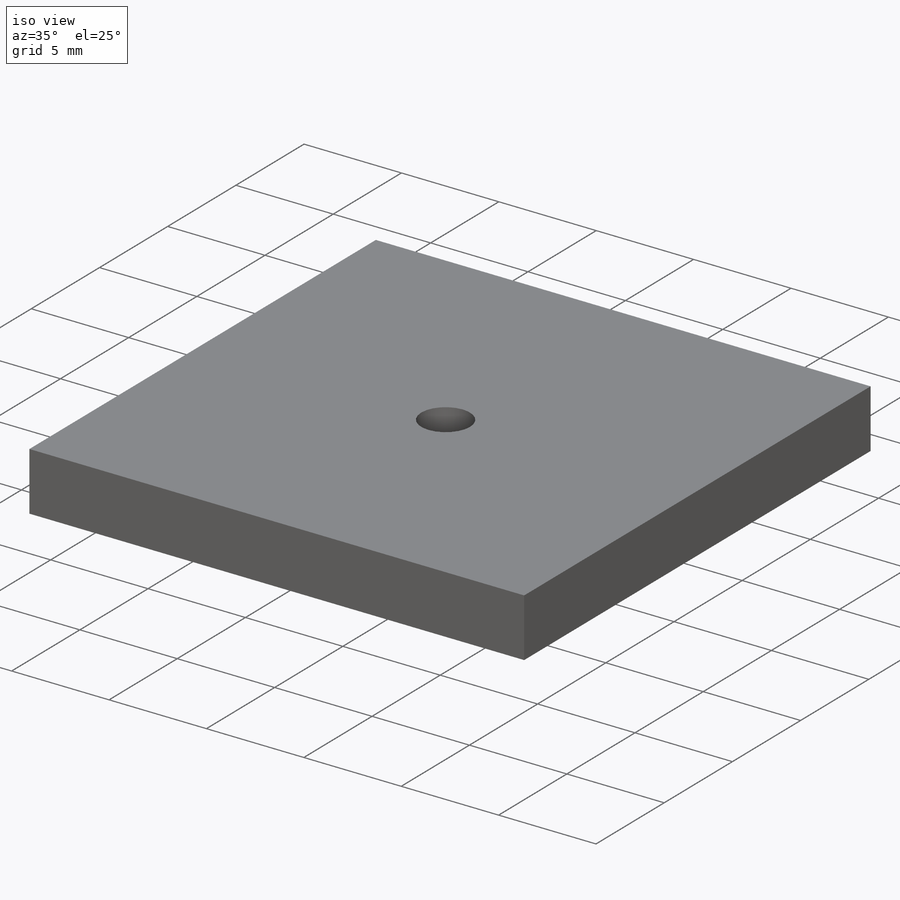
[diagram: iso view]
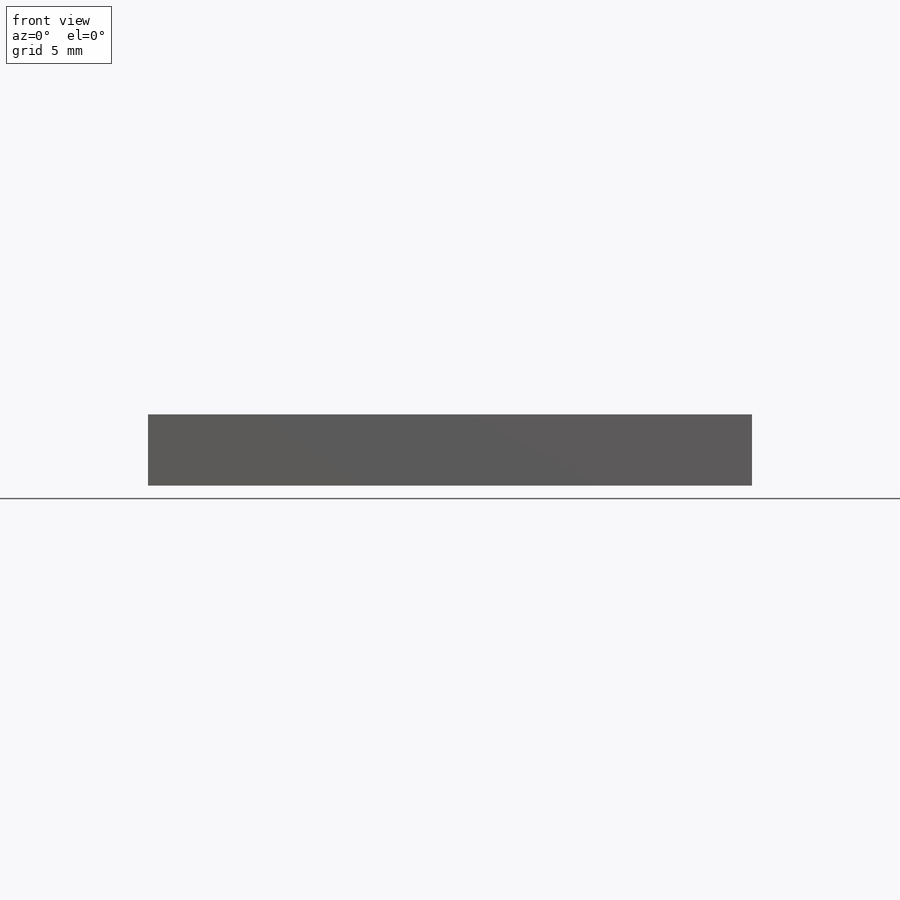
[diagram: front view]
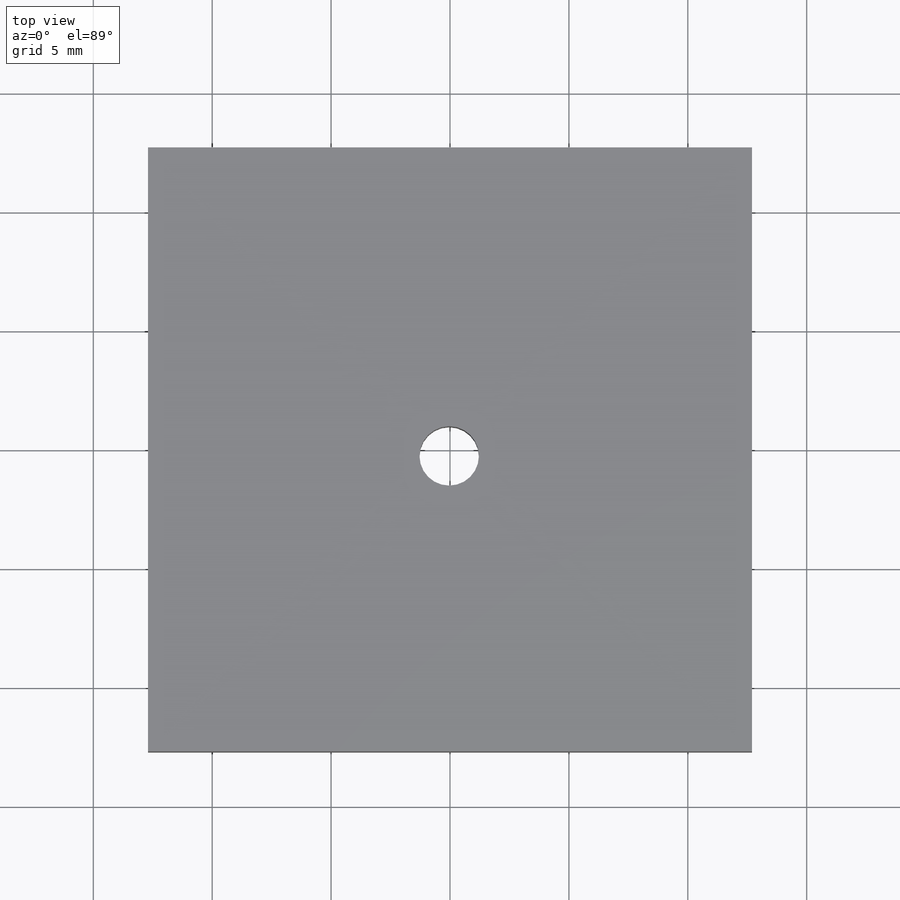
[diagram: top view]
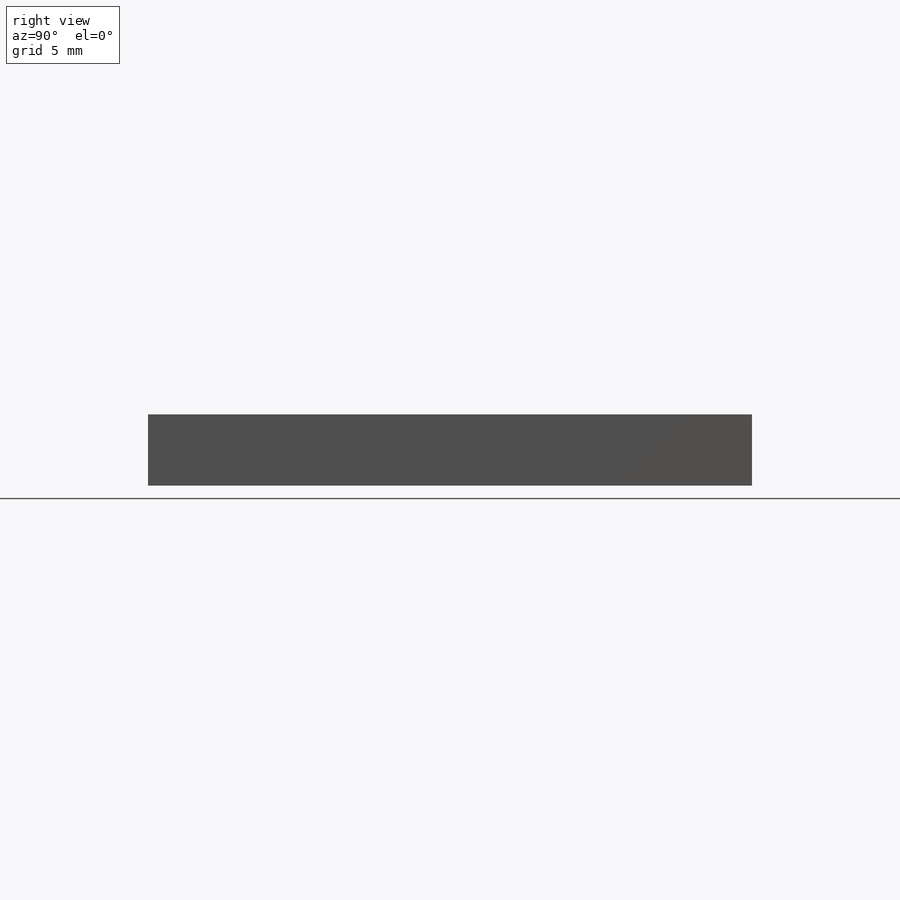
[diagram: right view]
SOLIDWORKS PART (.sldprt)
format: sldprt  version: not decoded by parser v0  size: 138,752 bytes
history: native  units: mm
features: sketch x3, thread x3, material x1, extrude x1, hole x1 (+12 scaffold rows collapsed)
feature tree (21):
  scaffold x12  (default folders/planes/origin — collapsed)
  material  "Material <not specified>"
  sketch  "Sketch1"  dims[D1=25.4mm D2=25.4mm]
  extrude  "Boss-Extrude1"  Depth=3mm
  hole  "M3x0.5 Tapped Hole1"  Diameter=2.5mm Depth=3mm
  sketch  "3DSketch1"
  sketch  "Sketch2"  dims[hole-wizard template sketch: 60 standard entries collapsed; hole parameters kept: c18.Thru Tap Drill Depth=3.0mm]
  thread  "Hole Thread1"  Diameter=3mm  [1 undecoded]
  thread  "Hole Thread2"  Diameter=3mm  [1 undecoded]
  thread  "Hole Thread3"  Diameter=3mm  [1 undecoded]
decode coverage: 7 of 8 modeling features carry decoded parameters
note: ~ marks probable driven/reference dimensions
note: 3 parameter values undecoded
note: suppression state not decoded; provenance and decode notes live in map.json
